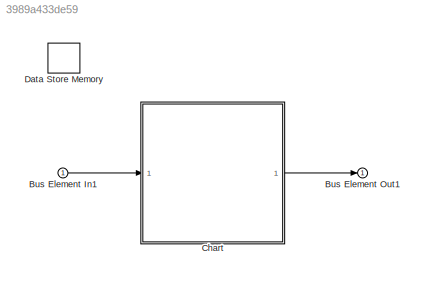
MODEL slx_3989a433de59
KIND model
CONFIG AbsTol = auto
CONFIG EnableMultiTasking = off
CONFIG FixedStep = auto
CONFIG MaxStep = auto
CONFIG MinStep = auto
CONFIG RelTol = 1e-3
CONFIG SampleTimeConstraint = Unconstrained
CONFIG SolverName = VariableStepAuto
CONFIG StartTime = 0.0
CONFIG StopTime = 10.0
BLOCK [Inport] Bus Element In1
BLOCK [Outport] Bus Element Out1
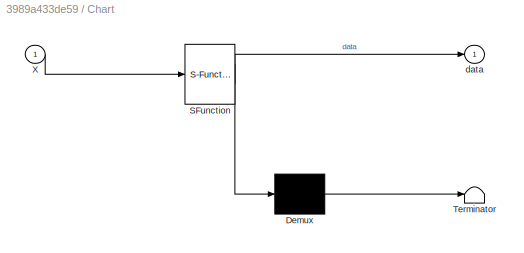
BLOCK [SubSystem] Chart
  ErrorFcn = Stateflow.Translate.translate
  PermitHierarchicalResolution = ExplicitOnly
  Ports = [1, 1]
  RequestExecContextInheritance = off
  SFBlockType = Chart
  TreatAsAtomicUnit = on
BLOCK [Demux] Chart/ Demux 
  Outputs = 1
  Ports = [1, 1]
BLOCK [S-Function] Chart/ SFunction 
  EnableBusSupport = on
  FunctionName = sf_sfun
  PortCounts = [1 2]
  Ports = [1, 2]
  SFcnIsStateOwnerBlock = off
  SFunctionDeploymentMode = off
  Tag = Stateflow S-Function 3
BLOCK [Terminator] Chart/ Terminator 
BLOCK [Inport] Chart/X
BLOCK [Outport] Chart/data
BLOCK [DataStoreMemory] Data Store Memory
  DataStoreName = X
  InitialValue = [16.5,16.5,16.5,16.5]
  ReadBeforeWriteMsg = warning
  ShowAdditionalParam = off
  WriteAfterReadMsg = warning
  WriteAfterWriteMsg = warning
LINE Bus Element In1:1 -> Chart:1
LINE Chart:1 -> Bus Element Out1:1
CHART Chart states=43 transitions=62
  STATE_LABEL 'st13\nentry:\n  h2 = 0;\n  h4 = 0;\n  Room=[1,3];'
  STATE_LABEL 's1'
  STATE_LABEL 's1_on\nentry:\n  h1 = 1'
  STATE_LABEL 's1_off\nentry:\n  h1 = 0'
  STATE_LABEL '[x(1)>=off(1)]'
  STATE_LABEL '[x(1)<=on(1)]'
  STATE_LABEL 's3'
  STATE_LABEL 's3_on\nentry:\n  h3 = 1'
  STATE_LABEL 's3_off\nentry:\n  h3 = 0'
  STATE_LABEL '[x(3)>=off(3)]'
  STATE_LABEL '[x(3)<=on(3)]'
  STATE_LABEL 's1'
  STATE_LABEL 's1_on\nentry:\n  h1 = 1'
  STATE_LABEL 's1_off\nentry:\n  h1 = 0'
  STATE_LABEL '[x(1)>=off(1)]'
  STATE_LABEL '[x(1)<=on(1)]'
  STATE_LABEL 's1_on\nentry:\n  h1 = 1'
  STATE_LABEL 's1_off\nentry:\n  h1 = 0'
  STATE_LABEL 's3'
  STATE_LABEL 's3_on\nentry:\n  h3 = 1'
  STATE_LABEL 's3_off\nentry:\n  h3 = 0'
  STATE_LABEL '[x(3)>=off(3)]'
  STATE_LABEL '[x(3)<=on(3)]'
  STATE_LABEL 's3_on\nentry:\n  h3 = 1'
  STATE_LABEL 's3_off\nentry:\n  h3 = 0'
  STATE_LABEL 'st14\nentry:\n  h2 = 0;\n  h3 = 0;\n  Room=[1,4];\n'
  STATE_LABEL 's1'
  STATE_LABEL 's1_on\nentry:\n  h1 = 1'
  STATE_LABEL 's1_off\nentry:\n  h1 = 0'
  STATE_LABEL '[x(1)>=off(1)]'
  STATE_LABEL '[x(1)<=on(1)]'
  STATE_LABEL 's4'
  STATE_LABEL 's4_on\nentry:\n  h4 = 1'
  STATE_LABEL 's4_off\nentry:\n  h4 = 0'
  STATE_LABEL '[x(4)>=off(4)]'
  STATE_LABEL '[x(4)<=on(4)]'
  STATE_LABEL 's1'
  STATE_LABEL 's1_on\nentry:\n  h1 = 1'
  STATE_LABEL 's1_off\nentry:\n  h1 = 0'
  STATE_LABEL '[x(1)>=off(1)]'
CHART  states=0 transitions=0
